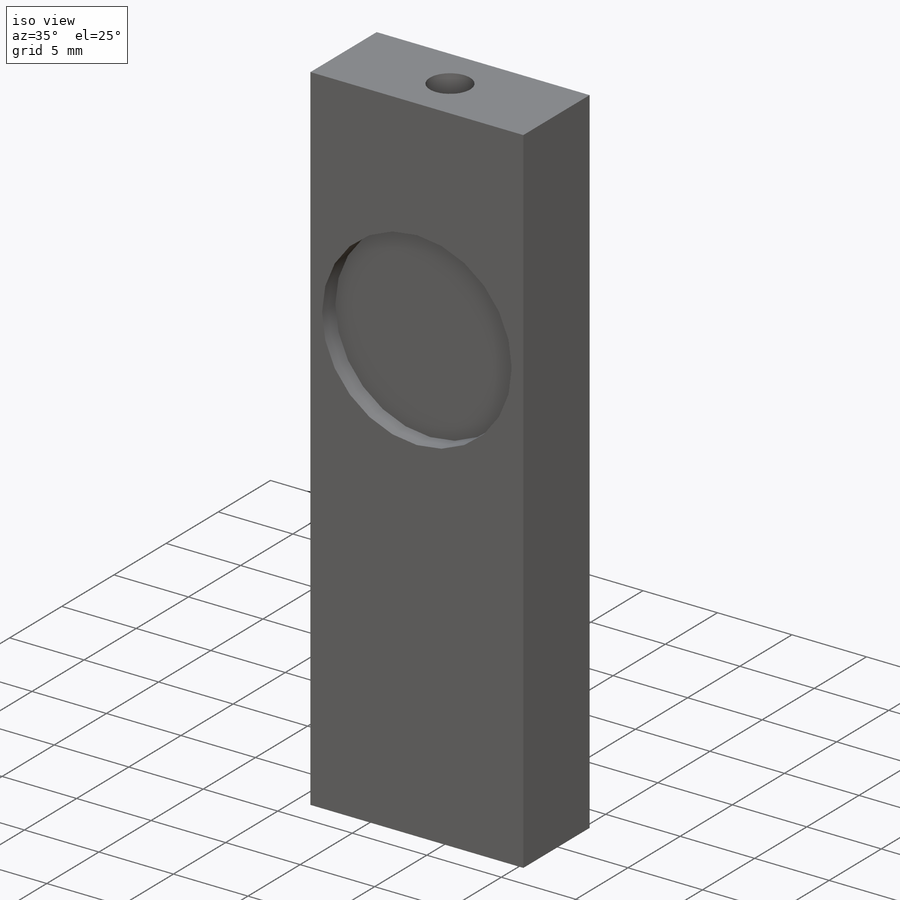
[diagram: iso view]
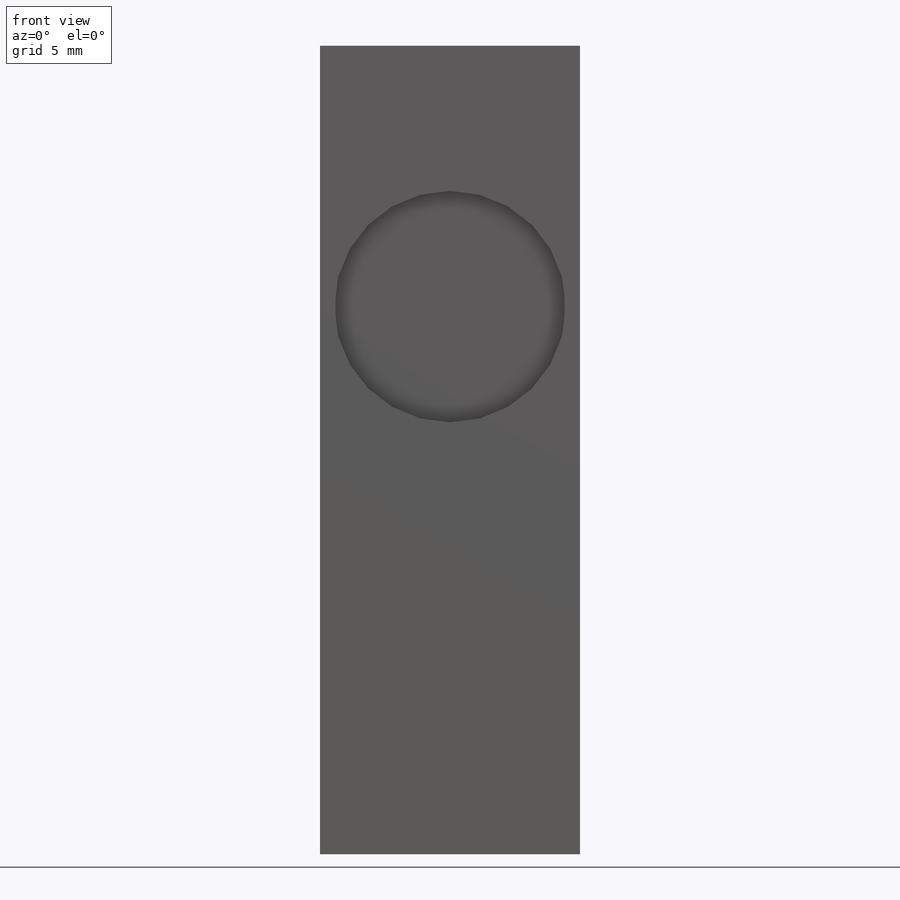
[diagram: front view]
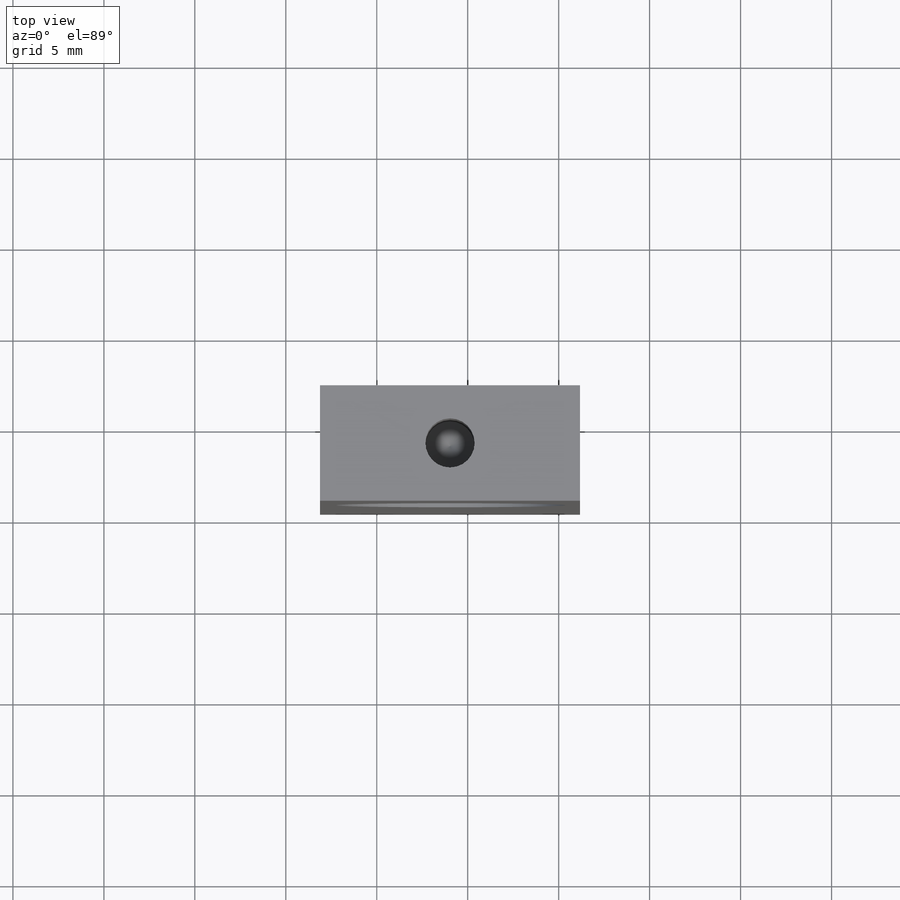
[diagram: top view]
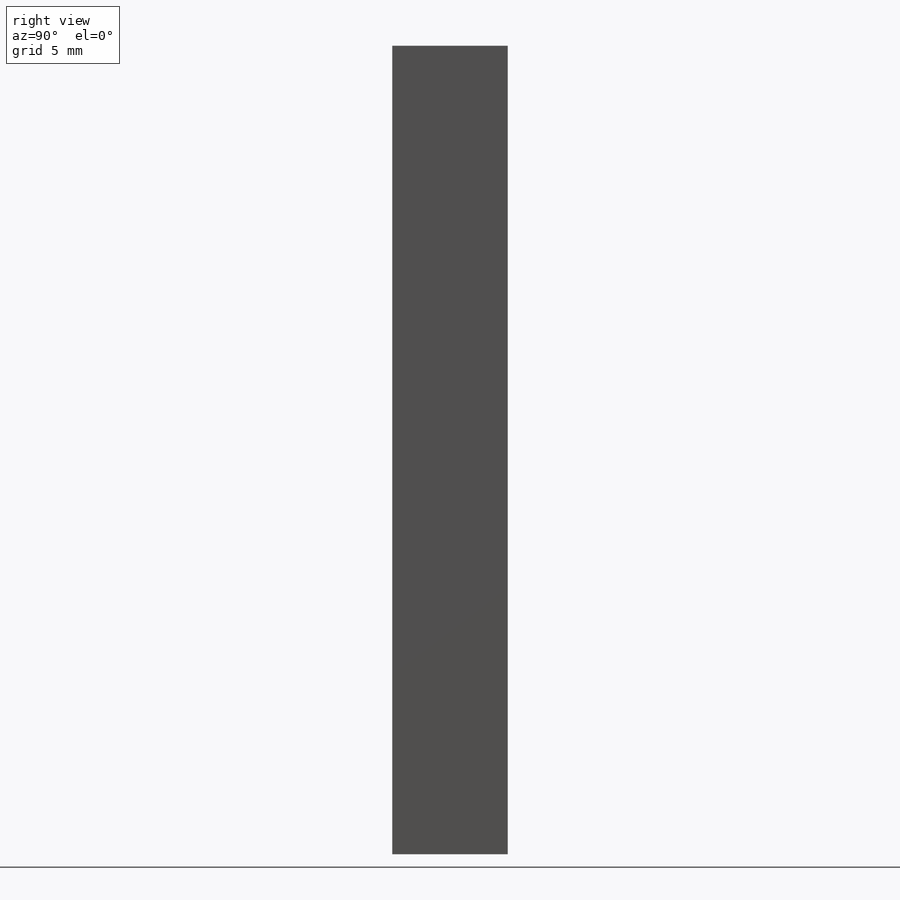
[diagram: right view]
SOLIDWORKS PART (.sldprt)
format: sldprt  version: not decoded by parser v0  size: 332,800 bytes
history: native  units: mm
features: sketch x4, thread x2, material x1, extrude x1, cut_extrude x1, hole x1 (+11 scaffold rows collapsed)
feature tree (21):
  scaffold x11  (default folders/planes/origin — collapsed)
  material  "Material <not specified>"
  sketch  "Sketch1"  dims[D1=14.2875mm D2=6.35mm]
  extrude  "Extrude1"  Depth=44.45mm
  sketch  "Sketch6"  dims[D1=14.351mm D2=~7.14375mm D3=13.208mm]
  cut_extrude  "Cut-Extrude2"  Depth=1.27mm
  hole  "#6-32 Tapped Hole1"  Diameter=2.7051mm Depth=9.398mm
  sketch  "3DSketch1"  dims[D1=3.175mm D2=~7.14375mm D3=~7.14375mm D4=3.175mm]
  sketch  "Sketch7"  dims[hole-wizard template sketch: 49 standard entries collapsed; hole parameters kept: c15.Drill Angle=118.0deg]
  thread  "Hole Thread1"  Diameter=7.112mm  [1 undecoded]
  thread  "Hole Thread2"  Diameter=7.112mm  [1 undecoded]
decode coverage: 9 of 9 modeling features carry decoded parameters
note: ~ marks probable driven/reference dimensions
note: 2 parameter values undecoded
note: suppression state not decoded; provenance and decode notes live in map.json
